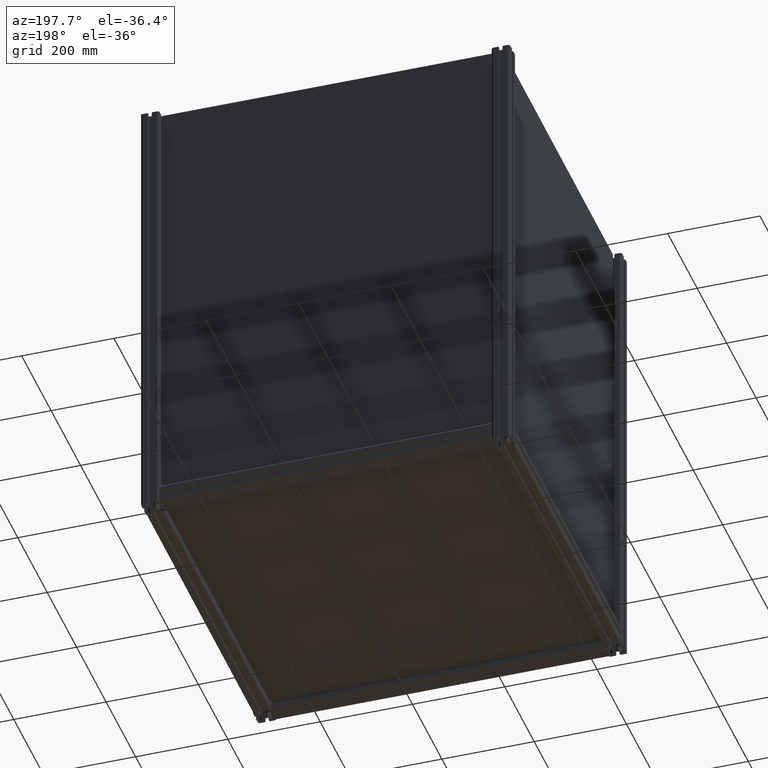
[diagram: clean part render]
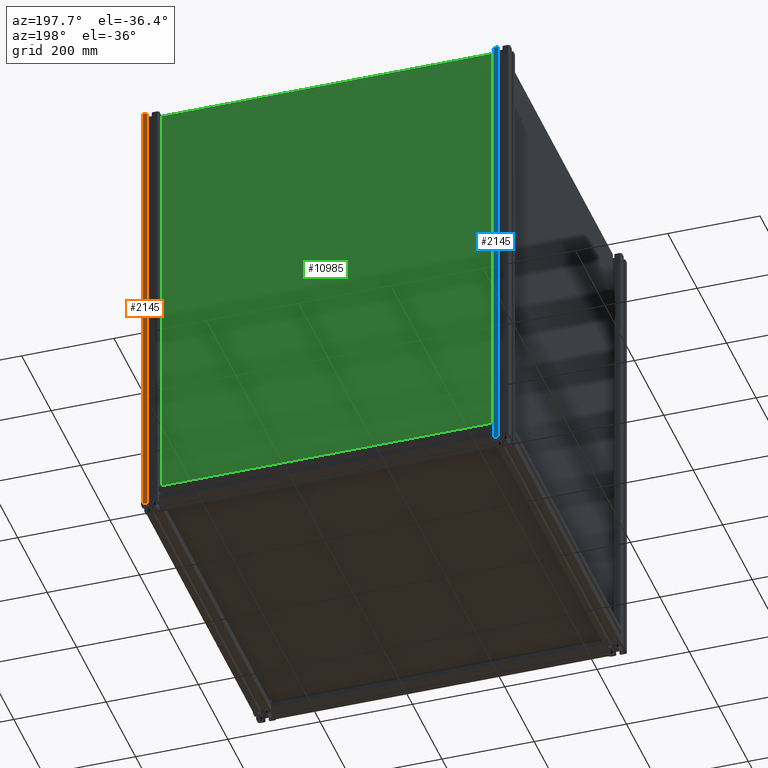
[diagram: same view with three faces highlighted in distinct colors, each labeled with its STEP entity id]
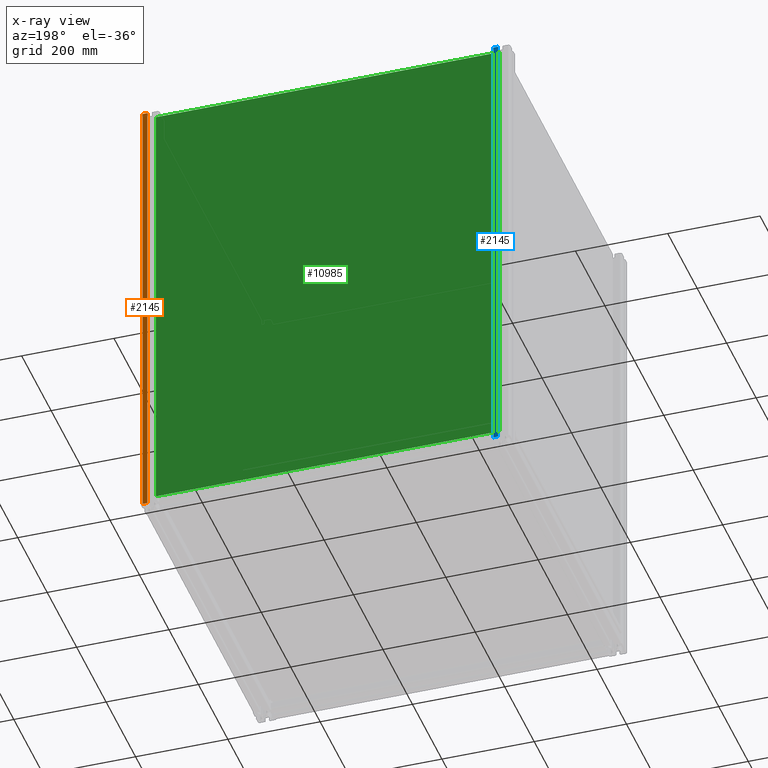
[diagram: x-ray of the same camera — body ghosted, the three highlighted faces saturated]
A machine part, auxiliary view with three faces highlighted in distinct colors.
The next image is the same camera in x-ray (body ghosted, the three faces saturated) — at least one of them is partly hidden behind the body in this view.
Their STEP definitions:

[orange] entity #2145 — the highlighted planar face has unit normal (0, -1, 0).
#340 = PLANE ( 'NONE',  #3210 ) ;
#934 = VERTEX_POINT ( 'NONE', #4451 ) ;
#1173 = DIRECTION ( 'NONE',  ( 0.000000000000000000, 0.000000000000000000, -1.000000000000000000 ) ) ;
#1315 = LINE ( 'NONE', #10450, #8952 ) ;
#1452 = CARTESIAN_POINT ( 'NONE',  ( 15.50000000000000000, 20.00000000000180123, 600.0000000000000000 ) ) ;
#1892 = VERTEX_POINT ( 'NONE', #4455 ) ;
#2145 = ADVANCED_FACE ( 'NONE', ( #8826 ), #340, .F. ) ;
#2299 = EDGE_CURVE ( 'NONE', #5141, #1892, #1315, .T. ) ;
#2698 = CARTESIAN_POINT ( 'NONE',  ( 5.100000000000370903, 20.00000000000180123, -400.0000000000000000 ) ) ;
#2705 = VECTOR ( 'NONE', #8759, 1000.000000000000000 ) ;
#3086 = CARTESIAN_POINT ( 'NONE',  ( 15.50000000000000000, 20.00000000000180123, -400.0000000000000000 ) ) ;
#3134 = CARTESIAN_POINT ( 'NONE',  ( 15.50000000000000000, 20.00000000000180123, 800.0000000000000000 ) ) ;
#3210 = AXIS2_PLACEMENT_3D ( 'NONE', #3134, #11094, #1173 ) ;
#3290 = ORIENTED_EDGE ( 'NONE', *, *, #2299, .T. ) ;
#3321 = DIRECTION ( 'NONE',  ( 0.000000000000000000, 0.000000000000000000, 1.000000000000000000 ) ) ;
#3400 = ORIENTED_EDGE ( 'NONE', *, *, #8049, .F. ) ;
#3594 = ORIENTED_EDGE ( 'NONE', *, *, #4165, .F. ) ;
#3682 = EDGE_LOOP ( 'NONE', ( #7701, #3594, #3400, #3290 ) ) ;
#3800 = VECTOR ( 'NONE', #5155, 1000.000000000000000 ) ;
#4165 = EDGE_CURVE ( 'NONE', #7459, #934, #11505, .T. ) ;
#4233 = CARTESIAN_POINT ( 'NONE',  ( 15.50000000000000000, 20.00000000000180123, 800.0000000000000000 ) ) ;
#4451 = CARTESIAN_POINT ( 'NONE',  ( 15.50000000000000000, 20.00000000000180123, 600.0000000000000000 ) ) ;
#4455 = CARTESIAN_POINT ( 'NONE',  ( 5.100000000000370903, 20.00000000000180123, 600.0000000000000000 ) ) ;
#5141 = VERTEX_POINT ( 'NONE', #2698 ) ;
#5155 = DIRECTION ( 'NONE',  ( 0.000000000000000000, 0.000000000000000000, 1.000000000000000000 ) ) ;
#6915 = LINE ( 'NONE', #8055, #7123 ) ;
#7123 = VECTOR ( 'NONE', #9696, 1000.000000000000000 ) ;
#7459 = VERTEX_POINT ( 'NONE', #3086 ) ;
#7677 = EDGE_CURVE ( 'NONE', #934, #1892, #10604, .T. ) ;
#7701 = ORIENTED_EDGE ( 'NONE', *, *, #7677, .F. ) ;
#8049 = EDGE_CURVE ( 'NONE', #5141, #7459, #6915, .T. ) ;
#8055 = CARTESIAN_POINT ( 'NONE',  ( 5.100000000000370903, 20.00000000000180123, -400.0000000000000000 ) ) ;
#8759 = DIRECTION ( 'NONE',  ( -1.000000000000000000, 0.000000000000000000, 0.000000000000000000 ) ) ;
#8826 = FACE_OUTER_BOUND ( 'NONE', #3682, .T. ) ;
#8952 = VECTOR ( 'NONE', #3321, 1000.000000000000000 ) ;
#9696 = DIRECTION ( 'NONE',  ( 1.000000000000000000, 0.000000000000000000, 0.000000000000000000 ) ) ;
#10450 = CARTESIAN_POINT ( 'NONE',  ( 5.100000000000360245, 20.00000000000180123, 800.0000000000000000 ) ) ;
#10604 = LINE ( 'NONE', #1452, #2705 ) ;
#11094 = DIRECTION ( 'NONE',  ( 0.000000000000000000, -1.000000000000000000, 0.000000000000000000 ) ) ;
#11505 = LINE ( 'NONE', #4233, #3800 ) ;

[blue] entity #2145 — the highlighted planar face has unit normal (0, -1, 0).
#340 = PLANE ( 'NONE',  #3210 ) ;
#934 = VERTEX_POINT ( 'NONE', #4451 ) ;
#1173 = DIRECTION ( 'NONE',  ( 0.000000000000000000, 0.000000000000000000, -1.000000000000000000 ) ) ;
#1315 = LINE ( 'NONE', #10450, #8952 ) ;
#1452 = CARTESIAN_POINT ( 'NONE',  ( 15.50000000000000000, 20.00000000000180123, 600.0000000000000000 ) ) ;
#1892 = VERTEX_POINT ( 'NONE', #4455 ) ;
#2145 = ADVANCED_FACE ( 'NONE', ( #8826 ), #340, .F. ) ;
#2299 = EDGE_CURVE ( 'NONE', #5141, #1892, #1315, .T. ) ;
#2698 = CARTESIAN_POINT ( 'NONE',  ( 5.100000000000370903, 20.00000000000180123, -400.0000000000000000 ) ) ;
#2705 = VECTOR ( 'NONE', #8759, 1000.000000000000000 ) ;
#3086 = CARTESIAN_POINT ( 'NONE',  ( 15.50000000000000000, 20.00000000000180123, -400.0000000000000000 ) ) ;
#3134 = CARTESIAN_POINT ( 'NONE',  ( 15.50000000000000000, 20.00000000000180123, 800.0000000000000000 ) ) ;
#3210 = AXIS2_PLACEMENT_3D ( 'NONE', #3134, #11094, #1173 ) ;
#3290 = ORIENTED_EDGE ( 'NONE', *, *, #2299, .T. ) ;
#3321 = DIRECTION ( 'NONE',  ( 0.000000000000000000, 0.000000000000000000, 1.000000000000000000 ) ) ;
#3400 = ORIENTED_EDGE ( 'NONE', *, *, #8049, .F. ) ;
#3594 = ORIENTED_EDGE ( 'NONE', *, *, #4165, .F. ) ;
#3682 = EDGE_LOOP ( 'NONE', ( #7701, #3594, #3400, #3290 ) ) ;
#3800 = VECTOR ( 'NONE', #5155, 1000.000000000000000 ) ;
#4165 = EDGE_CURVE ( 'NONE', #7459, #934, #11505, .T. ) ;
#4233 = CARTESIAN_POINT ( 'NONE',  ( 15.50000000000000000, 20.00000000000180123, 800.0000000000000000 ) ) ;
#4451 = CARTESIAN_POINT ( 'NONE',  ( 15.50000000000000000, 20.00000000000180123, 600.0000000000000000 ) ) ;
#4455 = CARTESIAN_POINT ( 'NONE',  ( 5.100000000000370903, 20.00000000000180123, 600.0000000000000000 ) ) ;
#5141 = VERTEX_POINT ( 'NONE', #2698 ) ;
#5155 = DIRECTION ( 'NONE',  ( 0.000000000000000000, 0.000000000000000000, 1.000000000000000000 ) ) ;
#6915 = LINE ( 'NONE', #8055, #7123 ) ;
#7123 = VECTOR ( 'NONE', #9696, 1000.000000000000000 ) ;
#7459 = VERTEX_POINT ( 'NONE', #3086 ) ;
#7677 = EDGE_CURVE ( 'NONE', #934, #1892, #10604, .T. ) ;
#7701 = ORIENTED_EDGE ( 'NONE', *, *, #7677, .F. ) ;
#8049 = EDGE_CURVE ( 'NONE', #5141, #7459, #6915, .T. ) ;
#8055 = CARTESIAN_POINT ( 'NONE',  ( 5.100000000000370903, 20.00000000000180123, -400.0000000000000000 ) ) ;
#8759 = DIRECTION ( 'NONE',  ( -1.000000000000000000, 0.000000000000000000, 0.000000000000000000 ) ) ;
#8826 = FACE_OUTER_BOUND ( 'NONE', #3682, .T. ) ;
#8952 = VECTOR ( 'NONE', #3321, 1000.000000000000000 ) ;
#9696 = DIRECTION ( 'NONE',  ( 1.000000000000000000, 0.000000000000000000, 0.000000000000000000 ) ) ;
#10450 = CARTESIAN_POINT ( 'NONE',  ( 5.100000000000360245, 20.00000000000180123, 800.0000000000000000 ) ) ;
#10604 = LINE ( 'NONE', #1452, #2705 ) ;
#11094 = DIRECTION ( 'NONE',  ( 0.000000000000000000, -1.000000000000000000, 0.000000000000000000 ) ) ;
#11505 = LINE ( 'NONE', #4233, #3800 ) ;

[green] entity #10985 — the highlighted planar face has unit normal (0, 1, 0).
#423 = ORIENTED_EDGE ( 'NONE', *, *, #4005, .T. ) ;
#1074 = ORIENTED_EDGE ( 'NONE', *, *, #9927, .F. ) ;
#1407 = VERTEX_POINT ( 'NONE', #4810 ) ;
#1762 = PLANE ( 'NONE',  #5414 ) ;
#1799 = LINE ( 'NONE', #2207, #5649 ) ;
#2207 = CARTESIAN_POINT ( 'NONE',  ( -773.1269624573380952, 257.8730375426625301, 0.000000000000000000 ) ) ;
#2680 = CARTESIAN_POINT ( 'NONE',  ( 0.000000000000000000, 0.000000000000000000, 0.000000000000000000 ) ) ;
#2833 = EDGE_CURVE ( 'NONE', #7933, #3256, #1799, .T. ) ;
#3042 = CARTESIAN_POINT ( 'NONE',  ( -28.32696245733834672, -714.5269624573373903, 0.000000000000000000 ) ) ;
#3256 = VERTEX_POINT ( 'NONE', #6122 ) ;
#3516 = DIRECTION ( 'NONE',  ( 0.000000000000000000, 0.000000000000000000, 1.000000000000000000 ) ) ;
#3677 = LINE ( 'NONE', #5025, #7454 ) ;
#4005 = EDGE_CURVE ( 'NONE', #9486, #1407, #3677, .T. ) ;
#4810 = CARTESIAN_POINT ( 'NONE',  ( -28.32696245733819751, 257.8730375426625301, 0.000000000000000000 ) ) ;
#5025 = CARTESIAN_POINT ( 'NONE',  ( -28.32696245733819751, 257.8730375426625301, 0.000000000000000000 ) ) ;
#5414 = AXIS2_PLACEMENT_3D ( 'NONE', #2680, #3516, #6245 ) ;
#5539 = CARTESIAN_POINT ( 'NONE',  ( -28.32696245733834672, -714.5269624573373903, 0.000000000000000000 ) ) ;
#5649 = VECTOR ( 'NONE', #7473, 1000.000000000000000 ) ;
#6122 = CARTESIAN_POINT ( 'NONE',  ( -773.1269624573380952, 257.8730375426625301, 0.000000000000000000 ) ) ;
#6245 = DIRECTION ( 'NONE',  ( 1.000000000000000000, 0.000000000000000000, 0.000000000000000000 ) ) ;
#7036 = FACE_OUTER_BOUND ( 'NONE', #7887, .T. ) ;
#7064 = VECTOR ( 'NONE', #7278, 1000.000000000000000 ) ;
#7278 = DIRECTION ( 'NONE',  ( -1.000000000000000000, 0.000000000000000000, 0.000000000000000000 ) ) ;
#7454 = VECTOR ( 'NONE', #7710, 1000.000000000000000 ) ;
#7473 = DIRECTION ( 'NONE',  ( 1.141734908088396479E-16, 1.000000000000000000, -0.000000000000000000 ) ) ;
#7710 = DIRECTION ( 'NONE',  ( -1.117974313196651756E-16, 1.000000000000000000, 0.000000000000000000 ) ) ;
#7887 = EDGE_LOOP ( 'NONE', ( #11425, #8396, #1074, #423 ) ) ;
#7933 = VERTEX_POINT ( 'NONE', #8664 ) ;
#8396 = ORIENTED_EDGE ( 'NONE', *, *, #2833, .F. ) ;
#8664 = CARTESIAN_POINT ( 'NONE',  ( -773.1269624573382089, -714.5269624573373903, 0.000000000000000000 ) ) ;
#9486 = VERTEX_POINT ( 'NONE', #5539 ) ;
#9506 = VECTOR ( 'NONE', #11148, 1000.000000000000000 ) ;
#9720 = LINE ( 'NONE', #3042, #9506 ) ;
#9927 = EDGE_CURVE ( 'NONE', #9486, #7933, #9720, .T. ) ;
#10658 = LINE ( 'NONE', #10735, #7064 ) ;
#10735 = CARTESIAN_POINT ( 'NONE',  ( -600.7269624573378906, 257.8730375426625301, 0.000000000000000000 ) ) ;
#10902 = EDGE_CURVE ( 'NONE', #1407, #3256, #10658, .T. ) ;
#10985 = ADVANCED_FACE ( 'NONE', ( #7036 ), #1762, .T. ) ;
#11148 = DIRECTION ( 'NONE',  ( -1.000000000000000000, 0.000000000000000000, 0.000000000000000000 ) ) ;
#11425 = ORIENTED_EDGE ( 'NONE', *, *, #10902, .T. ) ;